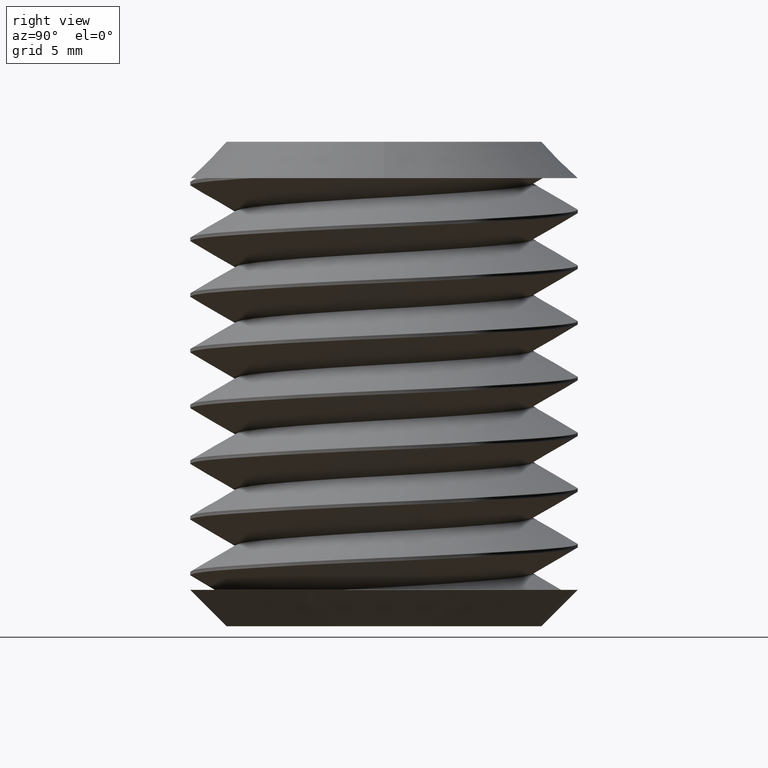
[diagram: clean part render]
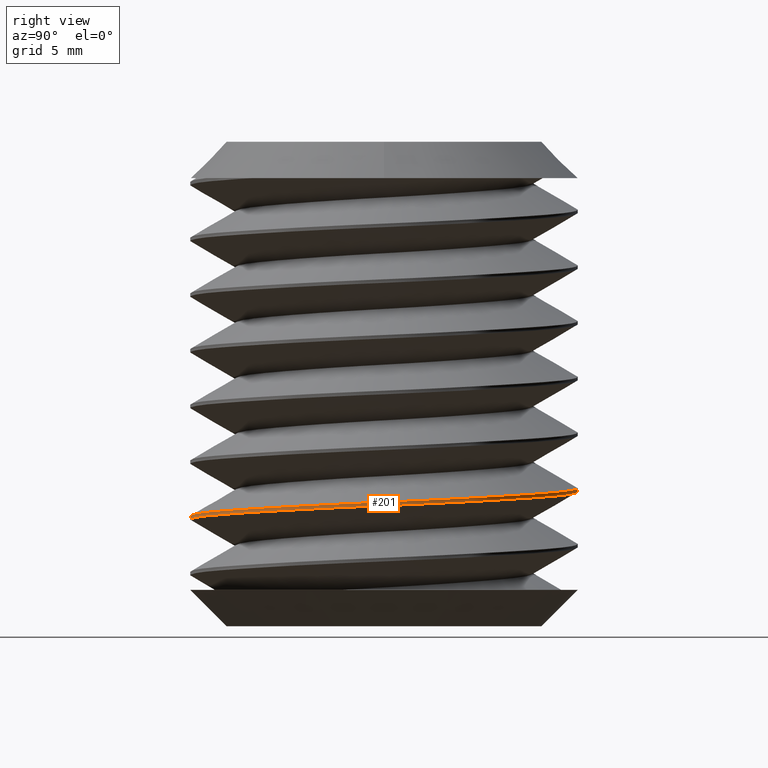
[diagram: same view with one face highlighted and labeled with its STEP entity id]
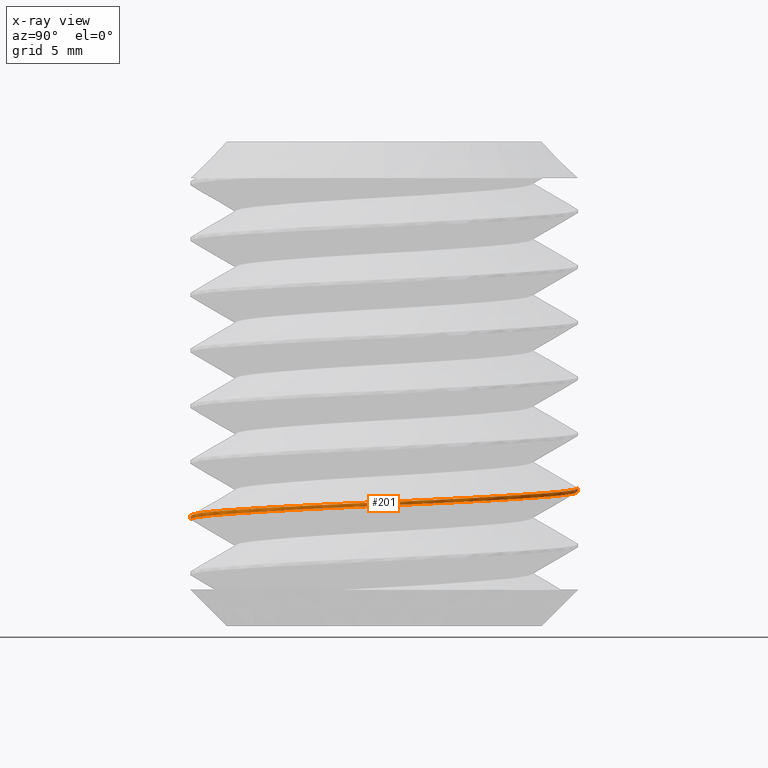
[diagram: x-ray of the same camera — body ghosted, the highlighted face saturated]
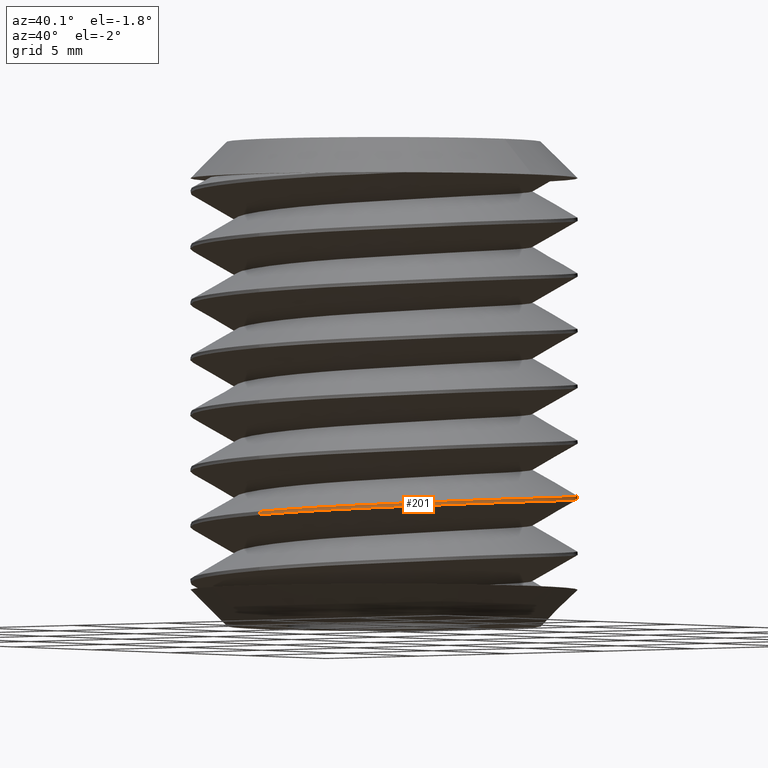
[diagram: same view with one face highlighted and labeled with its STEP entity id]
A machine part, right view. The second image highlights one B-rep face of the part: STEP entity #201.
The next image is the same camera in x-ray: the body ghosted, the highlighted face saturated — about 0% of this face is hidden behind the body in this view.
A second angle (auxiliary view) of the same face is appended — the face is thin or edge-on in the first view.
In plain terms, the highlighted cylindrical surface (partial cylindrical patch) has radius 8 mm, axis along (0, -0, 1).
Its self-contained STEP definition (entity closure, byte-faithful):
#201 = ADVANCED_FACE ( 'NONE', ( #1586 ), #1642, .T. ) ;
#378 = CARTESIAN_POINT ( 'NONE',  ( -3.160760730523303400E-014, 7.999999999999998200, -14.44727949763769600 ) ) ;
#379 = CARTESIAN_POINT ( 'NONE',  ( 0.5226088004441306100, 8.000000000000000000, -14.47232116930335600 ) ) ;
#380 = CARTESIAN_POINT ( 'NONE',  ( 1.052432807760434600, 7.947612275774198500, -14.49770856961738600 ) ) ;
#381 = CARTESIAN_POINT ( 'NONE',  ( 2.075669170893078300, 7.743626617670257100, -14.54673864525336000 ) ) ;
#382 = CARTESIAN_POINT ( 'NONE',  ( 2.574572175325217800, 7.592636507899634100, -14.57064441415473200 ) ) ;
#383 = CARTESIAN_POINT ( 'NONE',  ( 3.303389996722182300, 7.290867732054812800, -14.60556693465445300 ) ) ;
#384 = CARTESIAN_POINT ( 'NONE',  ( 3.542794317544323100, 7.177544593839284600, -14.61703839165463300 ) ) ;
#385 = CARTESIAN_POINT ( 'NONE',  ( 4.004477851328521100, 6.930562395014936400, -14.63916072756631500 ) ) ;
#386 = CARTESIAN_POINT ( 'NONE',  ( 4.228139451782578100, 6.796372243195005300, -14.64988260207381600 ) ) ;
#387 = CARTESIAN_POINT ( 'NONE',  ( 4.661260924455922000, 6.506956699251356100, -14.67226936224251300 ) ) ;
#388 = CARTESIAN_POINT ( 'NONE',  ( 4.870728819616866500, 6.351727176605344900, -14.68372943129192300 ) ) ;
#389 = CARTESIAN_POINT ( 'NONE',  ( 5.275290794570090600, 6.019945547344866200, -14.70719002107288300 ) ) ;
#390 = CARTESIAN_POINT ( 'NONE',  ( 5.471347608502665800, 5.842397324236014100, -14.71925494320663000 ) ) ;
#391 = CARTESIAN_POINT ( 'NONE',  ( 6.029531319884693400, 5.284104148458968800, -14.75579561488802200 ) ) ;
#392 = CARTESIAN_POINT ( 'NONE',  ( 6.359980615153073600, 4.880840584555250500, -14.78044687782600200 ) ) ;
#393 = CARTESIAN_POINT ( 'NONE',  ( 6.794845245351476500, 4.230610789350107500, -14.81784812837723900 ) ) ;
#394 = CARTESIAN_POINT ( 'NONE',  ( 6.929592255721638100, 4.006257374125334000, -14.83038644721371000 ) ) ;
#395 = CARTESIAN_POINT ( 'NONE',  ( 7.178056057976243100, 3.541872133045108800, -14.85560984369852200 ) ) ;
#396 = CARTESIAN_POINT ( 'NONE',  ( 7.290949748762010100, 3.303090583672147100, -14.86822331842979700 ) ) ;
#397 = CARTESIAN_POINT ( 'NONE',  ( 7.591114006976354700, 2.578451222100798500, -14.90548515009130900 ) ) ;
#398 = CARTESIAN_POINT ( 'NONE',  ( 7.742576973625857000, 2.080113069332612900, -14.92979351390676600 ) ) ;
#399 = CARTESIAN_POINT ( 'NONE',  ( 7.896422589955085100, 1.309619190558638300, -14.96545262198594300 ) ) ;
#400 = CARTESIAN_POINT ( 'NONE',  ( 7.935456899559276200, 1.047893127628346500, -14.97724867867923100 ) ) ;
#401 = CARTESIAN_POINT ( 'NONE',  ( 7.987243411192847200, 0.5229712248777475000, -15.00027210797859200 ) ) ;
#402 = CARTESIAN_POINT ( 'NONE',  ( 8.000150964010709100, 0.2595912862335894000, -15.01150360845282500 ) ) ;
#403 = CARTESIAN_POINT ( 'NONE',  ( 7.999694084788076000, -0.5330167738508669900, -15.04440545117353500 ) ) ;
#404 = CARTESIAN_POINT ( 'NONE',  ( 7.947552778797820000, -1.053396489209991200, -15.06724889327924500 ) ) ;
#405 = CARTESIAN_POINT ( 'NONE',  ( 7.742905846584507800, -2.078616940704639300, -15.11469551754576000 ) ) ;
#406 = CARTESIAN_POINT ( 'NONE',  ( 7.587871610949604500, -2.587898346387485400, -15.13954355566248800 ) ) ;
#407 = CARTESIAN_POINT ( 'NONE',  ( 7.186796644923235000, -3.552881565716793100, -15.18919660080858600 ) ) ;
#408 = CARTESIAN_POINT ( 'NONE',  ( 6.941014122409085600, -4.012129251318329500, -15.21414256483499200 ) ) ;
#409 = CARTESIAN_POINT ( 'NONE',  ( 6.503783745754377700, -4.665780913486280200, -15.25174249201418200 ) ) ;
#410 = CARTESIAN_POINT ( 'NONE',  ( 6.345644109345448300, -4.878694722665351000, -15.26436654924116400 ) ) ;
#411 = CARTESIAN_POINT ( 'NONE',  ( 6.012287449902056700, -5.284057246016885800, -15.28917456833498500 ) ) ;
#412 = CARTESIAN_POINT ( 'NONE',  ( 5.836675000093975100, -5.477324925412764500, -15.30140198860954800 ) ) ;
#413 = CARTESIAN_POINT ( 'NONE',  ( 5.283615839208225800, -6.029498921531345700, -15.33756595657737300 ) ) ;
#414 = CARTESIAN_POINT ( 'NONE',  ( 4.880011994645697900, -6.361178061723261800, -15.36099933807268800 ) ) ;
#415 = CARTESIAN_POINT ( 'NONE',  ( 4.001125067496947600, -6.947668788527758800, -15.40639363938120400 ) ) ;
#416 = CARTESIAN_POINT ( 'NONE',  ( 3.540151458335722100, -7.192973889497382700, -15.42764724020199700 ) ) ;
#417 = CARTESIAN_POINT ( 'NONE',  ( 2.817886017744065400, -7.491822530048306600, -15.46225579260878300 ) ) ;
#418 = CARTESIAN_POINT ( 'NONE',  ( 2.571951002010935300, -7.579840751945599000, -15.47404017879143200 ) ) ;
#419 = CARTESIAN_POINT ( 'NONE',  ( 2.069484246994547600, -7.732150589133771800, -15.49811671082054900 ) ) ;
#420 = CARTESIAN_POINT ( 'NONE',  ( 1.812201390824579500, -7.796448187315300000, -15.51044484768448200 ) ) ;
#421 = CARTESIAN_POINT ( 'NONE',  ( 1.041003024264175000, -7.949278305422876800, -15.54739810275593600 ) ) ;
#422 = CARTESIAN_POINT ( 'NONE',  ( 0.5226123011713833500, -7.999999999999998200, -15.57223765822885900 ) ) ;
#423 = CARTESIAN_POINT ( 'NONE',  ( 6.275039685598678600E-014, -8.000000000000000000, -15.59727949763769300 ) ) ;
#426 = CARTESIAN_POINT ( 'NONE',  ( 9.797174393178825700E-016, 8.000000000000000000, -18.49999999999999600 ) ) ;
#427 = DIRECTION ( 'NONE',  ( 0.0000000000000000000, -2.168404344971008900E-016, 1.000000000000000000 ) ) ;
#428 = CARTESIAN_POINT ( 'NONE',  ( 0.0000000000000000000, -8.000000000000000000, -18.50000000000000400 ) ) ;
#429 = DIRECTION ( 'NONE',  ( 0.0000000000000000000, -2.168404344971008900E-016, 1.000000000000000000 ) ) ;
#430 = CARTESIAN_POINT ( 'NONE',  ( -3.160760730523304000E-014, -8.000000000000000000, -15.45272050236230600 ) ) ;
#431 = CARTESIAN_POINT ( 'NONE',  ( 0.5226088008220489700, -8.000000000000005300, -15.42767883067853400 ) ) ;
#432 = CARTESIAN_POINT ( 'NONE',  ( 1.052432807838143500, -7.947612275743294300, -15.40229143037889300 ) ) ;
#433 = CARTESIAN_POINT ( 'NONE',  ( 2.075669170360591000, -7.743626617791830900, -15.35326135477215100 ) ) ;
#434 = CARTESIAN_POINT ( 'NONE',  ( 2.574572174971185000, -7.592636508065266000, -15.32935558586223100 ) ) ;
#435 = CARTESIAN_POINT ( 'NONE',  ( 3.303389997270121700, -7.290867731818416100, -15.29443306531929300 ) ) ;
#436 = CARTESIAN_POINT ( 'NONE',  ( 3.542794317674080200, -7.177544593765557800, -15.28296160833914300 ) ) ;
#437 = CARTESIAN_POINT ( 'NONE',  ( 4.004477850993924700, -6.930562395198246700, -15.26083927244972400 ) ) ;
#438 = CARTESIAN_POINT ( 'NONE',  ( 4.228139451337662000, -6.796372243470884200, -15.25011739794829200 ) ) ;
#439 = CARTESIAN_POINT ( 'NONE',  ( 4.661260923991324700, -6.506956699583218700, -15.22773063778238600 ) ) ;
#440 = CARTESIAN_POINT ( 'NONE',  ( 4.870728819243017100, -6.351727176900949300, -15.21627056872930900 ) ) ;
#441 = CARTESIAN_POINT ( 'NONE',  ( 5.275290794542085500, -6.019945547378821300, -15.19280997892919800 ) ) ;
#442 = CARTESIAN_POINT ( 'NONE',  ( 5.471347608872557400, -5.842397323872651400, -15.18074505676943900 ) ) ;
#443 = CARTESIAN_POINT ( 'NONE',  ( 6.029531319445971400, -5.284104148884571500, -15.14420438514015500 ) ) ;
#444 = CARTESIAN_POINT ( 'NONE',  ( 6.359980614641546700, -4.880840585245093300, -15.11955312221487800 ) ) ;
#445 = CARTESIAN_POINT ( 'NONE',  ( 6.794845245073789300, -4.230610789802822700, -15.08215187164819500 ) ) ;
#446 = CARTESIAN_POINT ( 'NONE',  ( 6.929592255580311100, -4.006257374393269000, -15.06961355280079000 ) ) ;
#447 = CARTESIAN_POINT ( 'NONE',  ( 7.178056058168739800, -3.541872132681555700, -15.04439015628178400 ) ) ;
#448 = CARTESIAN_POINT ( 'NONE',  ( 7.290949748630557000, -3.303090583943725000, -15.03177668158463300 ) ) ;
#449 = CARTESIAN_POINT ( 'NONE',  ( 7.591114006623729300, -2.578451223043682500, -14.99451484995628200 ) ) ;
#450 = CARTESIAN_POINT ( 'NONE',  ( 7.742576973397469000, -2.080113070305933000, -14.97020648613911000 ) ) ;
#451 = CARTESIAN_POINT ( 'NONE',  ( 7.896422589919490400, -1.309619190822176400, -14.93454737802585400 ) ) ;
#452 = CARTESIAN_POINT ( 'NONE',  ( 7.935456899567145500, -1.047893127508086300, -14.92275132131559400 ) ) ;
#453 = CARTESIAN_POINT ( 'NONE',  ( 7.987243411161292000, -0.5229712252380830400, -14.89972789203712400 ) ) ;
#454 = CARTESIAN_POINT ( 'NONE',  ( 8.000150963976723900, -0.2595912881608928300, -14.88849639162634000 ) ) ;
#455 = CARTESIAN_POINT ( 'NONE',  ( 7.999694084857891200, 0.5330167745171822100, -14.85559454880048800 ) ) ;
#456 = CARTESIAN_POINT ( 'NONE',  ( 7.947552778604224600, 1.053396490407457800, -14.83275110666642300 ) ) ;
#457 = CARTESIAN_POINT ( 'NONE',  ( 7.742905846511105100, 2.078616940844710800, -14.78530448244666900 ) ) ;
#458 = CARTESIAN_POINT ( 'NONE',  ( 7.587871611079128400, 2.587898346184164900, -14.76045644434905500 ) ) ;
#459 = CARTESIAN_POINT ( 'NONE',  ( 7.186796644305157900, 3.552881567095567100, -14.71080339911939900 ) ) ;
#460 = CARTESIAN_POINT ( 'NONE',  ( 6.941014121686885500, 4.012129252392418800, -14.68585743510313600 ) ) ;
#461 = CARTESIAN_POINT ( 'NONE',  ( 6.503783746154935500, 4.665780912890231700, -14.64825750802015000 ) ) ;
#462 = CARTESIAN_POINT ( 'NONE',  ( 6.345644109953061800, 4.878694721912142800, -14.63563345080465300 ) ) ;
#463 = CARTESIAN_POINT ( 'NONE',  ( 6.012287449647369700, 5.284057246340933200, -14.61082543164547200 ) ) ;
#464 = CARTESIAN_POINT ( 'NONE',  ( 5.836674999540862900, 5.477324926008271300, -14.59859801135249500 ) ) ;
#465 = CARTESIAN_POINT ( 'NONE',  ( 5.283615838317665200, 6.029498922333917900, -14.56243404336799200 ) ) ;
#466 = CARTESIAN_POINT ( 'NONE',  ( 4.880011997465199000, 6.361178059719155600, -14.53900066207802800 ) ) ;
#467 = CARTESIAN_POINT ( 'NONE',  ( 4.001125067246887200, 6.947668788817240100, -14.49360636060079200 ) ) ;
#468 = CARTESIAN_POINT ( 'NONE',  ( 3.540151457354966600, 7.192973889954510400, -14.47235275975101100 ) ) ;
#469 = CARTESIAN_POINT ( 'NONE',  ( 2.817886017225278600, 7.491822530237298500, -14.43774420736635700 ) ) ;
#470 = CARTESIAN_POINT ( 'NONE',  ( 2.571951001906466900, 7.579840751955403600, -14.42595982120356100 ) ) ;
#471 = CARTESIAN_POINT ( 'NONE',  ( 2.069484248319232400, 7.732150588754084500, -14.40188328924292400 ) ) ;
#472 = CARTESIAN_POINT ( 'NONE',  ( 1.812201391820603500, 7.796448187104719100, -14.38955515236325900 ) ) ;
#473 = CARTESIAN_POINT ( 'NONE',  ( 1.041003023434456300, 7.949278305613677100, -14.35260189720431400 ) ) ;
#474 = CARTESIAN_POINT ( 'NONE',  ( 0.5226123001976944500, 7.999999999999996400, -14.32776234172448900 ) ) ;
#475 = CARTESIAN_POINT ( 'NONE',  ( 3.160760730523303400E-014, 7.999999999999998200, -14.30272050236230500 ) ) ;
#574 = CARTESIAN_POINT ( 'NONE',  ( 3.160760730523303400E-014, 7.999999999999998200, -14.30272050236230500 ) ) ;
#587 = CARTESIAN_POINT ( 'NONE',  ( -3.160760730523304000E-014, -8.000000000000000000, -15.45272050236230600 ) ) ;
#600 = CARTESIAN_POINT ( 'NONE',  ( -3.160760730523303400E-014, 7.999999999999998200, -14.44727949763769600 ) ) ;
#609 = CARTESIAN_POINT ( 'NONE',  ( 6.275039685598678600E-014, -8.000000000000000000, -15.59727949763769300 ) ) ;
#1518 = VECTOR ( 'NONE', #429, 1000.000000000000000 ) ;
#1519 = LINE ( 'NONE', #426, #1673 ) ;
#1586 = FACE_OUTER_BOUND ( 'NONE', #1607, .T. ) ;
#1607 = EDGE_LOOP ( 'NONE', ( #1611, #1610, #1616, #1661 ) ) ;
#1610 = ORIENTED_EDGE ( 'NONE', *, *, #2756, .T. ) ;
#1611 = ORIENTED_EDGE ( 'NONE', *, *, #2754, .F. ) ;
#1616 = ORIENTED_EDGE ( 'NONE', *, *, #2758, .F. ) ;
#1642 = CYLINDRICAL_SURFACE ( 'NONE', #2608, 8.000000000000000000 ) ;
#1661 = ORIENTED_EDGE ( 'NONE', *, *, #2757, .F. ) ;
#1672 = LINE ( 'NONE', #428, #1518 ) ;
#1673 = VECTOR ( 'NONE', #427, 1000.000000000000000 ) ;
#2106 = B_SPLINE_CURVE_WITH_KNOTS ( 'NONE', 3,
 ( #430, #431, #432, #433, #434, #435, #436, #437, #438, #439, #440, #441, #442, #443, #444, #445, #446, #447, #448, #449, #450, #451, #452, #453, #454, #455, #456, #457, #458, #459, #460, #461, #462, #463, #464, #465, #466, #467, #468, #469, #470, #471, #472, #473, #474, #475 ),
 .UNSPECIFIED., .F., .F.,
 ( 4, 2, 2, 2, 2, 2, 2, 2, 2, 2, 2, 2, 2, 2, 2, 2, 2, 2, 2, 2, 2, 2, 4 ),
 ( 0.06650062520924933400, 0.06806885903188092400, 0.06963709285451250000, 0.07042120976582830200, 0.07120532667714409000, 0.07198944358845987800, 0.07277356049977568000, 0.07434179432240725600, 0.07512591123372304400, 0.07591002814503883300, 0.07747826196767042300, 0.07826237887898621100, 0.07904649579030199900, 0.08061472961293358900, 0.08218296343556516500, 0.08375119725819674100, 0.08453531416951254300, 0.08531943108082833100, 0.08688766490345992100, 0.08845589872609149800, 0.08924001563740729900, 0.09002413254872308800, 0.09159236637135466400 ),
 .UNSPECIFIED. ) ;
#2107 = B_SPLINE_CURVE_WITH_KNOTS ( 'NONE', 3,
 ( #378, #379, #380, #381, #382, #383, #384, #385, #386, #387, #388, #389, #390, #391, #392, #393, #394, #395, #396, #397, #398, #399, #400, #401, #402, #403, #404, #405, #406, #407, #408, #409, #410, #411, #412, #413, #414, #415, #416, #417, #418, #419, #420, #421, #422, #423 ),
 .UNSPECIFIED., .F., .F.,
 ( 4, 2, 2, 2, 2, 2, 2, 2, 2, 2, 2, 2, 2, 2, 2, 2, 2, 2, 2, 2, 2, 2, 4 ),
 ( -0.08877886110836311100, -0.08719342830064938400, -0.08560799549293565700, -0.08481527908907879300, -0.08402256268522193000, -0.08322984628136506600, -0.08243712987750820300, -0.08085169706979447600, -0.08005898066593761200, -0.07926626426208076300, -0.07768083145436703600, -0.07688811505051018600, -0.07609539864665332300, -0.07450996583893959600, -0.07292453303122588300, -0.07133910022351217000, -0.07054638381965530600, -0.06975366741579844300, -0.06816823460808473000, -0.06658280180037101600, -0.06579008539651415300, -0.06499736899265729000, -0.06341193618494357600 ),
 .UNSPECIFIED. ) ;
#2608 = AXIS2_PLACEMENT_3D ( 'NONE', #2790, #2780, #2770 ) ;
#2754 = EDGE_CURVE ( 'NONE', #2806, #2815, #2107, .T. ) ;
#2756 = EDGE_CURVE ( 'NONE', #2806, #2778, #1519, .T. ) ;
#2757 = EDGE_CURVE ( 'NONE', #2815, #2793, #1672, .T. ) ;
#2758 = EDGE_CURVE ( 'NONE', #2793, #2778, #2106, .T. ) ;
#2770 = DIRECTION ( 'NONE',  ( 0.0000000000000000000, -1.000000000000000000, -4.336808689942017700E-016 ) ) ;
#2778 = VERTEX_POINT ( 'NONE', #574 ) ;
#2780 = DIRECTION ( 'NONE',  ( 0.0000000000000000000, -2.168404344971008900E-016, 1.000000000000000000 ) ) ;
#2790 = CARTESIAN_POINT ( 'NONE',  ( 0.0000000000000000000, 0.0000000000000000000, -18.50000000000000000 ) ) ;
#2793 = VERTEX_POINT ( 'NONE', #587 ) ;
#2806 = VERTEX_POINT ( 'NONE', #600 ) ;
#2815 = VERTEX_POINT ( 'NONE', #609 ) ;